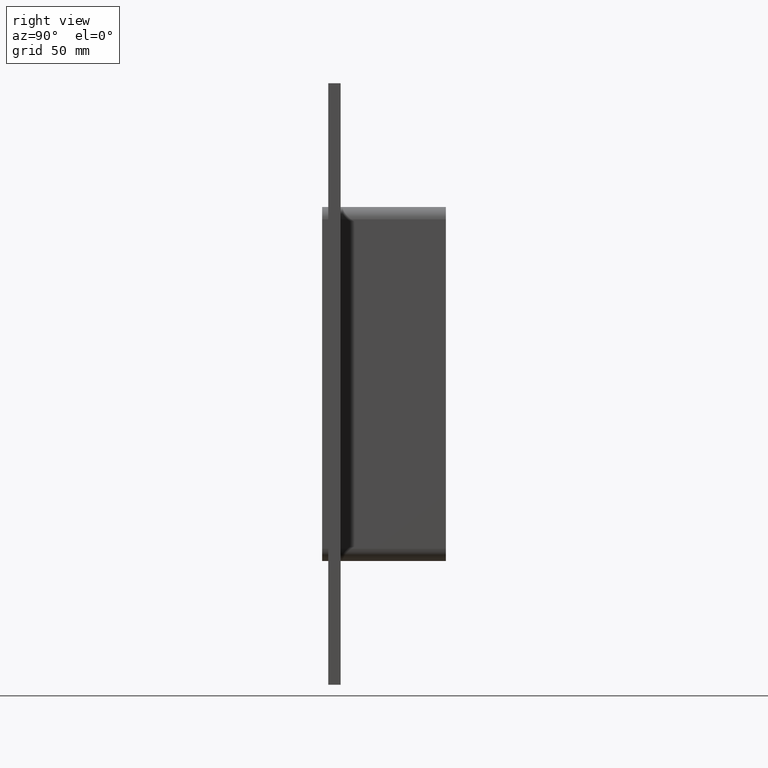
[diagram: clean part render]
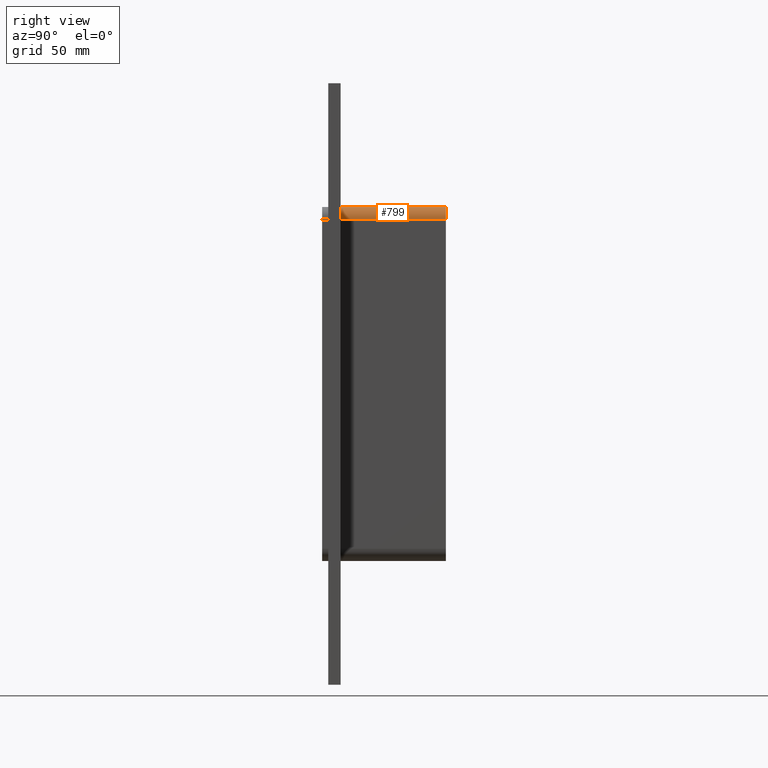
[diagram: same view with one face highlighted and labeled with its STEP entity id]
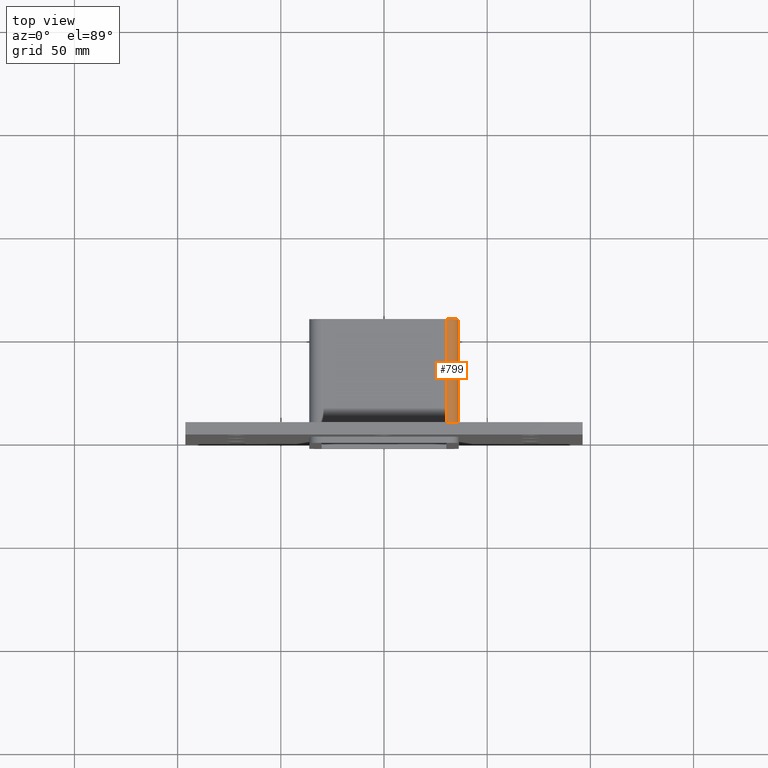
[diagram: same view with one face highlighted and labeled with its STEP entity id]
A machine part, right view. The second image highlights one B-rep face of the part: STEP entity #799.
A second angle (top view) of the same face is appended — the face is thin or edge-on in the first view.
In plain terms, the highlighted cylindrical surface (edge-blend (fillet) strip) has radius 6 mm, axis along (0, -1, 0).
Its self-contained STEP definition (entity closure, byte-faithful):
#445=CARTESIAN_POINT('',(36.250000000000007,6.000000000000001,79.750000000000014));
#446=VERTEX_POINT('',#445);
#453=CARTESIAN_POINT('',(30.250000000000004,6.000000000000001,85.750000000000014));
#454=VERTEX_POINT('',#453);
#455=CARTESIAN_POINT('',(30.250000000000004,6.000000000000001,79.750000000000014));
#456=DIRECTION('',(0.0,1.0,0.0));
#457=DIRECTION('',(0.707106781186546,0.0,0.707106781186549));
#458=AXIS2_PLACEMENT_3D('',#455,#456,#457);
#459=CIRCLE('',#458,6.000000000000001);
#460=EDGE_CURVE('',#454,#446,#459,.T.);
#768=CARTESIAN_POINT('',(30.250000000000004,0.0,79.750000000000014));
#769=DIRECTION('',(0.0,-1.0,0.0));
#770=DIRECTION('',(0.707106781186546,0.0,0.707106781186549));
#771=AXIS2_PLACEMENT_3D('',#768,#769,#770);
#772=CYLINDRICAL_SURFACE('',#771,6.000000000000001);
#773=ORIENTED_EDGE('',*,*,#460,.T.);
#774=CARTESIAN_POINT('',(36.250000000000007,57.0,79.750000000000014));
#775=VERTEX_POINT('',#774);
#776=CARTESIAN_POINT('',(36.250000000000007,6.000000000000001,79.750000000000014));
#777=DIRECTION('',(0.0,1.0,0.0));
#778=VECTOR('',#777,51.0);
#779=LINE('',#776,#778);
#780=EDGE_CURVE('',#446,#775,#779,.T.);
#781=ORIENTED_EDGE('',*,*,#780,.T.);
#782=CARTESIAN_POINT('',(30.25,57.0,85.750000000000014));
#783=VERTEX_POINT('',#782);
#784=CARTESIAN_POINT('',(30.250000000000004,57.0,79.750000000000014));
#785=DIRECTION('',(0.0,-1.0,0.0));
#786=DIRECTION('',(0.707106781186546,0.0,0.707106781186549));
#787=AXIS2_PLACEMENT_3D('',#784,#785,#786);
#788=CIRCLE('',#787,6.000000000000001);
#789=EDGE_CURVE('',#775,#783,#788,.T.);
#790=ORIENTED_EDGE('',*,*,#789,.T.);
#791=CARTESIAN_POINT('',(30.250000000000004,57.0,85.750000000000014));
#792=DIRECTION('',(0.0,-1.0,0.0));
#793=VECTOR('',#792,51.0);
#794=LINE('',#791,#793);
#795=EDGE_CURVE('',#783,#454,#794,.T.);
#796=ORIENTED_EDGE('',*,*,#795,.T.);
#797=EDGE_LOOP('',(#773,#781,#790,#796));
#798=FACE_OUTER_BOUND('',#797,.T.);
#799=ADVANCED_FACE('',(#798),#772,.T.);